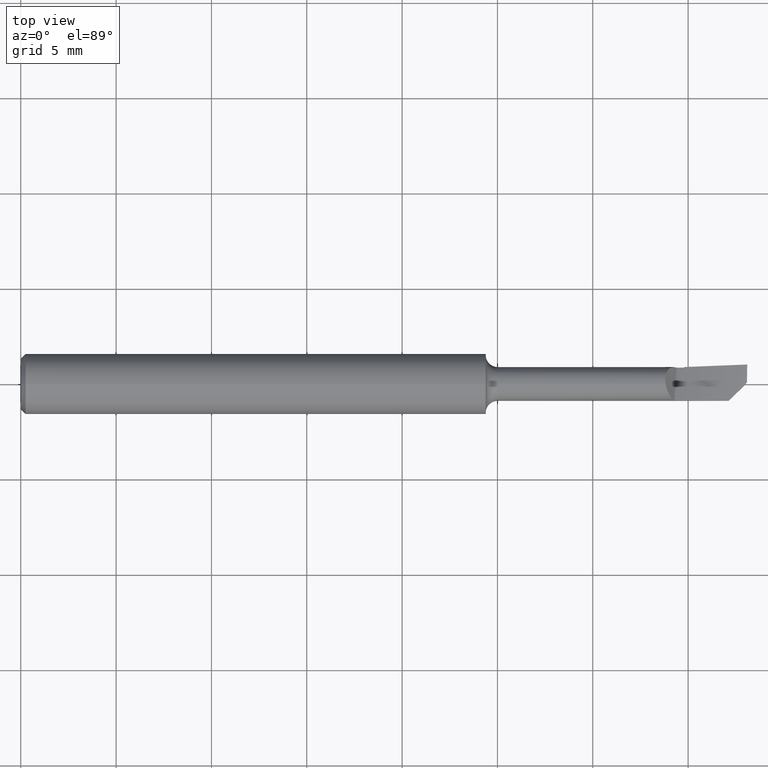
[diagram: clean part render]
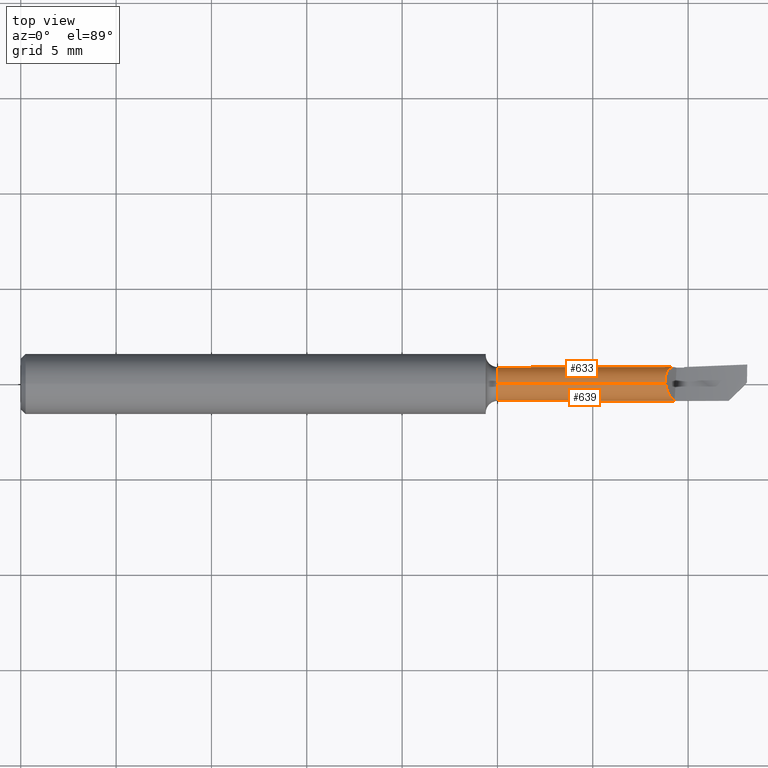
[diagram: same view with one multi-face feature highlighted, each face labeled with its STEP entity id]
A machine part, top view. The highlighted faces form ONE feature: a constant-radius fillet chain: 2 tangent blend faces with common blend radius 0.889 mm. The faces share edges in the B-rep.
Their STEP definitions:
[1] entity #633 (Cylinder):
#8 = AXIS2_PLACEMENT_3D ( 'NONE', #301, #539, #42 ) ;
#14 = CARTESIAN_POINT ( 'NONE',  ( 1.331000000000000183, 0.004616294289774065807, 0.03469423333970930723 ) ) ;
#16 = CARTESIAN_POINT ( 'NONE',  ( 1.331053929940201108, 0.003862502086807037549, 0.03479453070159699291 ) ) ;
#18 = CARTESIAN_POINT ( 'NONE',  ( 0.9850000000000004308, 0.000000000000000000, 0.03499999999999993394 ) ) ;
#39 = CARTESIAN_POINT ( 'NONE',  ( 1.354108048174081924, 0.03386716557508867576, -0.008832615462564030739 ) ) ;
#42 = DIRECTION ( 'NONE',  ( 0.000000000000000000, 0.000000000000000000, 1.000000000000000000 ) ) ;
#65 = CARTESIAN_POINT ( 'NONE',  ( 1.331394405026972372, 0.0007809970765131283698, 0.03499344398600933576 ) ) ;
#70 = CARTESIAN_POINT ( 'NONE',  ( 1.331456704639053301, 0.0003309101711865485127, 0.03500000487938483007 ) ) ;
#78 = CARTESIAN_POINT ( 'NONE',  ( 1.350060887786631136, 0.03549031136688796800, -0.002609453551673257717 ) ) ;
#84 = DIRECTION ( 'NONE',  ( 0.000000000000000000, -3.552713678800500929E-15, -1.000000000000000000 ) ) ;
#85 = CARTESIAN_POINT ( 'NONE',  ( 1.339351427473339351, 0.03167005691899973246, 0.01489993867792207931 ) ) ;
#87 = VERTEX_POINT ( 'NONE', #418 ) ;
#94 = VERTEX_POINT ( 'NONE', #174 ) ;
#133 = CARTESIAN_POINT ( 'NONE',  ( 1.354108048174081924, 0.03386716557508867576, -0.008832615462564030739 ) ) ;
#140 = CARTESIAN_POINT ( 'NONE',  ( 1.370000000000000107, 4.286263797015732127E-18, -0.03499999999999996864 ) ) ;
#146 = EDGE_CURVE ( 'NONE', #367, #750, #690, .T. ) ;
#164 = EDGE_CURVE ( 'NONE', #386, #87, #602, .T. ) ;
#166 = EDGE_LOOP ( 'NONE', ( #277, #496, #447, #462, #474, #669, #273, #630, #401 ) ) ;
#174 = CARTESIAN_POINT ( 'NONE',  ( 0.9850000000000004308, 4.286263797015730586E-18, -0.03499999999999993394 ) ) ;
#177 = CARTESIAN_POINT ( 'NONE',  ( 0.000000000000000000, 4.286263797015732127E-18, -0.03499999999999996864 ) ) ;
#185 = FACE_OUTER_BOUND ( 'NONE', #166, .T. ) ;
#191 = CARTESIAN_POINT ( 'NONE',  ( 1.335078279645394828, 0.02667914871020727122, 0.02277243315126092557 ) ) ;
#193 = B_SPLINE_CURVE_WITH_KNOTS ( 'NONE', 3,
 ( #383, #730, #722, #198, #191, #379, #605, #323, #267, #727, #430, #203, #271, #85, #673, #317, #319, #78, #133 ),
 .UNSPECIFIED., .F., .F.,
 ( 4, 2, 2, 2, 1, 1, 1, 2, 2, 2, 4 ),
 ( 0.000000000000000000, 0.2499999999999915623, 0.3749999999999874545, 0.4374999999999852895, 0.4687499999999842348, 0.4843749999999836797, 0.4921874999999834022, 0.4960937499999832356, 0.4999999999999831246, 0.7499999999999915623, 1.000000000000000000 ),
 .UNSPECIFIED. ) ;
#198 = CARTESIAN_POINT ( 'NONE',  ( 1.334244997354534501, 0.02513248369025491633, 0.02446211424800878720 ) ) ;
#200 = EDGE_CURVE ( 'NONE', #393, #324, #193, .T. ) ;
#203 = CARTESIAN_POINT ( 'NONE',  ( 1.339210398324998996, 0.03155333375350301978, 0.01514571490312990008 ) ) ;
#236 = EDGE_CURVE ( 'NONE', #324, #386, #280, .T. ) ;
#237 = CARTESIAN_POINT ( 'NONE',  ( 0.9850000000000004308, 0.000000000000000000, 0.000000000000000000 ) ) ;
#240 = CARTESIAN_POINT ( 'NONE',  ( 1.370000000000000107, 0.000000000000000000, 0.000000000000000000 ) ) ;
#241 = CARTESIAN_POINT ( 'NONE',  ( 1.331000000000000183, 0.004616294289774065807, 0.03469423333970930723 ) ) ;
#264 = CARTESIAN_POINT ( 'NONE',  ( 1.369999999999999885, 0.03408878458359804881, -0.007934403922984695212 ) ) ;
#267 = CARTESIAN_POINT ( 'NONE',  ( 1.338308066252124062, 0.03074923570111037785, 0.01673615675285359747 ) ) ;
#271 = CARTESIAN_POINT ( 'NONE',  ( 1.339287488361074363, 0.03161752867613174672, 0.01501124349615417207 ) ) ;
#273 = ORIENTED_EDGE ( 'NONE', *, *, #200, .T. ) ;
#277 = ORIENTED_EDGE ( 'NONE', *, *, #530, .T. ) ;
#279 = CARTESIAN_POINT ( 'NONE',  ( 1.369999999999999885, 0.03408878458359804881, -0.007934403922984695212 ) ) ;
#280 =( BOUNDED_CURVE ( )  B_SPLINE_CURVE ( 2, ( #39, #557, #264 ),
 .UNSPECIFIED., .F., .F. ) 
 B_SPLINE_CURVE_WITH_KNOTS ( ( 3, 3 ),
 ( 0.6897742532983571762, 0.7233326396390371560 ),
 .UNSPECIFIED. ) 
 CURVE ( )  GEOMETRIC_REPRESENTATION_ITEM ( )  RATIONAL_B_SPLINE_CURVE ( ( 0.9794810860655851492, 0.9791740060690131697, 0.9790380341072407733 ) ) 
 REPRESENTATION_ITEM ( '' )  );
#283 = CARTESIAN_POINT ( 'NONE',  ( 1.354108048174081924, 0.03386716557508867576, -0.008832615462564030739 ) ) ;
#295 = AXIS2_PLACEMENT_3D ( 'NONE', #240, #429, #84 ) ;
#299 = CARTESIAN_POINT ( 'NONE',  ( 1.331294995751446386, 0.001557939193859121186, 0.03496746922360455950 ) ) ;
#301 = CARTESIAN_POINT ( 'NONE',  ( 1.370000000000000329, 0.000000000000000000, 0.000000000000000000 ) ) ;
#316 = VECTOR ( 'NONE', #507, 39.37007874015748143 ) ;
#317 = CARTESIAN_POINT ( 'NONE',  ( 1.341894367848495806, 0.03356220163246477484, 0.01072261346815421047 ) ) ;
#319 = CARTESIAN_POINT ( 'NONE',  ( 1.346808722425171467, 0.03512389705892588615, 0.002776269691445878464 ) ) ;
#323 = CARTESIAN_POINT ( 'NONE',  ( 1.337880646310804611, 0.03031292884429805101, 0.01750633447771962267 ) ) ;
#324 = VERTEX_POINT ( 'NONE', #283 ) ;
#343 = B_SPLINE_CURVE_WITH_KNOTS ( 'NONE', 3,
 ( #370, #607, #667, #546 ),
 .UNSPECIFIED., .F., .F.,
 ( 4, 4 ),
 ( 0.000000000000000000, 1.000000000000000000 ),
 .UNSPECIFIED. ) ;
#367 = VERTEX_POINT ( 'NONE', #692 ) ;
#368 = EDGE_CURVE ( 'NONE', #367, #427, #397, .T. ) ;
#370 = CARTESIAN_POINT ( 'NONE',  ( 1.331000000000000183, 0.01240575712880445484, 0.03272762120993695512 ) ) ;
#379 = CARTESIAN_POINT ( 'NONE',  ( 1.336532539227902605, 0.02875460054899264123, 0.01998782427255080263 ) ) ;
#383 = CARTESIAN_POINT ( 'NONE',  ( 1.331000000000000183, 0.01240575712880445484, 0.03272762120993695512 ) ) ;
#386 = VERTEX_POINT ( 'NONE', #279 ) ;
#393 = VERTEX_POINT ( 'NONE', #409 ) ;
#397 = LINE ( 'NONE', #451, #316 ) ;
#401 = ORIENTED_EDGE ( 'NONE', *, *, #164, .T. ) ;
#404 = LINE ( 'NONE', #177, #422 ) ;
#409 = CARTESIAN_POINT ( 'NONE',  ( 1.331000000000000183, 0.01240575712880445484, 0.03272762120993695512 ) ) ;
#418 = CARTESIAN_POINT ( 'NONE',  ( 1.370000000000000107, 0.03319417074594387812, -0.01109716308292908217 ) ) ;
#420 = DIRECTION ( 'NONE',  ( -1.000000000000000000, -0.000000000000000000, -0.000000000000000000 ) ) ;
#422 = VECTOR ( 'NONE', #591, 39.37007874015748143 ) ;
#427 = VERTEX_POINT ( 'NONE', #18 ) ;
#429 = DIRECTION ( 'NONE',  ( -1.000000000000000000, -0.000000000000000000, -0.000000000000000000 ) ) ;
#430 = CARTESIAN_POINT ( 'NONE',  ( 1.339095162364922098, 0.03145644214380193676, 0.01534702063952567315 ) ) ;
#438 = CIRCLE ( 'NONE', #540, 0.03499999999999993394 ) ;
#447 = ORIENTED_EDGE ( 'NONE', *, *, #448, .F. ) ;
#448 = EDGE_CURVE ( 'NONE', #427, #94, #438, .T. ) ;
#451 = CARTESIAN_POINT ( 'NONE',  ( 0.000000000000000000, 0.000000000000000000, 0.03499999999999996864 ) ) ;
#462 = ORIENTED_EDGE ( 'NONE', *, *, #368, .F. ) ;
#466 = EDGE_CURVE ( 'NONE', #711, #94, #404, .T. ) ;
#472 = DIRECTION ( 'NONE',  ( 0.000000000000000000, 0.000000000000000000, 1.000000000000000000 ) ) ;
#474 = ORIENTED_EDGE ( 'NONE', *, *, #146, .T. ) ;
#477 = DIRECTION ( 'NONE',  ( -1.000000000000000000, -0.000000000000000000, -0.000000000000000000 ) ) ;
#489 = DIRECTION ( 'NONE',  ( 0.000000000000000000, 0.000000000000000000, 1.000000000000000000 ) ) ;
#496 = ORIENTED_EDGE ( 'NONE', *, *, #466, .T. ) ;
#507 = DIRECTION ( 'NONE',  ( -1.000000000000000000, -0.000000000000000000, -0.000000000000000000 ) ) ;
#509 = CARTESIAN_POINT ( 'NONE',  ( 0.000000000000000000, 0.000000000000000000, 0.000000000000000000 ) ) ;
#530 = EDGE_CURVE ( 'NONE', #87, #711, #734, .T. ) ;
#534 = CARTESIAN_POINT ( 'NONE',  ( 1.331157314241224965, 0.002718477382483935976, 0.03490923586866172268 ) ) ;
#539 = DIRECTION ( 'NONE',  ( -1.000000000000000000, -0.000000000000000000, -0.000000000000000000 ) ) ;
#540 = AXIS2_PLACEMENT_3D ( 'NONE', #237, #477, #472 ) ;
#546 = CARTESIAN_POINT ( 'NONE',  ( 1.331000000000000183, 0.004616294289774065807, 0.03469423333970930723 ) ) ;
#557 = CARTESIAN_POINT ( 'NONE',  ( 1.362050427833697563, 0.03398391115976232002, -0.008384974323531014379 ) ) ;
#568 = AXIS2_PLACEMENT_3D ( 'NONE', #509, #420, #489 ) ;
#591 = DIRECTION ( 'NONE',  ( -1.000000000000000000, -0.000000000000000000, -0.000000000000000000 ) ) ;
#592 = CARTESIAN_POINT ( 'NONE',  ( 1.331495543368545587, -1.641673629298505254E-06, 0.03501816221857528139 ) ) ;
#602 = CIRCLE ( 'NONE', #8, 0.03500000000000000333 ) ;
#605 = CARTESIAN_POINT ( 'NONE',  ( 1.337051348446442134, 0.02940566076342405674, 0.01901811565133405130 ) ) ;
#607 = CARTESIAN_POINT ( 'NONE',  ( 1.330999999999999517, 0.009803475525383244585, 0.03335994485740986781 ) ) ;
#612 = EDGE_CURVE ( 'NONE', #393, #750, #343, .T. ) ;
#630 = ORIENTED_EDGE ( 'NONE', *, *, #236, .T. ) ;
#631 = CYLINDRICAL_SURFACE ( 'NONE', #568, 0.03499999999999996864 ) ;
#633 = ADVANCED_FACE ( 'NONE', ( #185 ), #631, .T. ) ;
#667 = CARTESIAN_POINT ( 'NONE',  ( 1.330999999999999517, 0.007206722562426976127, 0.03401553553964020704 ) ) ;
#669 = ORIENTED_EDGE ( 'NONE', *, *, #612, .F. ) ;
#673 = CARTESIAN_POINT ( 'NONE',  ( 1.340232178633280258, 0.03238935991125894281, 0.01336809160094685339 ) ) ;
#690 = B_SPLINE_CURVE_WITH_KNOTS ( 'NONE', 3,
 ( #592, #70, #65, #299, #534, #16, #241 ),
 .UNSPECIFIED., .F., .F.,
 ( 4, 2, 1, 4 ),
 ( 0.9157605615777310026, 0.9368204211832978912, 0.9578802807888646687, 1.000000000000000000 ),
 .UNSPECIFIED. ) ;
#692 = CARTESIAN_POINT ( 'NONE',  ( 1.331495543368545587, -1.641673629298505254E-06, 0.03501816221857528139 ) ) ;
#711 = VERTEX_POINT ( 'NONE', #140 ) ;
#722 = CARTESIAN_POINT ( 'NONE',  ( 1.332153822774389651, 0.02013732479313393858, 0.02897645992646607702 ) ) ;
#727 = CARTESIAN_POINT ( 'NONE',  ( 1.338829072116323182, 0.03122619352372724144, 0.01581390174671621143 ) ) ;
#730 = CARTESIAN_POINT ( 'NONE',  ( 1.331304602777540147, 0.01633715496285515628, 0.03123738513575795642 ) ) ;
#734 = CIRCLE ( 'NONE', #295, 0.03499999999999996864 ) ;
#750 = VERTEX_POINT ( 'NONE', #14 ) ;
[2] entity #639 (Cylinder):
#18 = CARTESIAN_POINT ( 'NONE',  ( 0.9850000000000004308, 0.000000000000000000, 0.03499999999999993394 ) ) ;
#21 =( BOUNDED_CURVE ( )  B_SPLINE_CURVE ( 2, ( #159, #433, #676 ),
 .UNSPECIFIED., .F., .F. ) 
 B_SPLINE_CURVE_WITH_KNOTS ( ( 3, 3 ),
 ( 0.08301568989664878662, 0.3192027755319414850 ),
 .UNSPECIFIED. ) 
 CURVE ( )  GEOMETRIC_REPRESENTATION_ITEM ( )  RATIONAL_B_SPLINE_CURVE ( ( 0.9831666040570180565, 0.9771742139515711134, 0.9796576210879086588 ) ) 
 REPRESENTATION_ITEM ( '' )  );
#26 = CARTESIAN_POINT ( 'NONE',  ( 1.370000000000000107, -0.002475945125171957664, -0.03491231438528725334 ) ) ;
#38 = ORIENTED_EDGE ( 'NONE', *, *, #368, .T. ) ;
#53 = ORIENTED_EDGE ( 'NONE', *, *, #466, .F. ) ;
#66 = EDGE_CURVE ( 'NONE', #741, #148, #75, .T. ) ;
#71 =( BOUNDED_CURVE ( )  B_SPLINE_CURVE ( 3, ( #446, #276, #96, #161 ),
 .UNSPECIFIED., .F., .F. ) 
 B_SPLINE_CURVE_WITH_KNOTS ( ( 4, 4 ),
 ( 0.04083710381015163288, 0.07095262296442973737 ),
 .UNSPECIFIED. ) 
 CURVE ( )  GEOMETRIC_REPRESENTATION_ITEM ( )  RATIONAL_B_SPLINE_CURVE ( ( 1.000000000000000000, 0.9999244227201967705, 0.9999244227201967705, 1.000000000000000000 ) ) 
 REPRESENTATION_ITEM ( '' )  );
#75 = LINE ( 'NONE', #526, #714 ) ;
#77 = DIRECTION ( 'NONE',  ( 0.000000000000000000, 0.000000000000000000, 1.000000000000000000 ) ) ;
#79 = CARTESIAN_POINT ( 'NONE',  ( 1.347349021243149148, -0.03284882170808211405, 0.01302152709131887236 ) ) ;
#82 = VERTEX_POINT ( 'NONE', #482 ) ;
#83 = CARTESIAN_POINT ( 'NONE',  ( 1.332032781342379346, -0.003603421095435877831, 0.03499994691147841758 ) ) ;
#94 = VERTEX_POINT ( 'NONE', #174 ) ;
#96 = CARTESIAN_POINT ( 'NONE',  ( 1.495348054018489803, -0.0003513610013223372719, -0.03499999999999997558 ) ) ;
#106 = ORIENTED_EDGE ( 'NONE', *, *, #66, .T. ) ;
#108 = CARTESIAN_POINT ( 'NONE',  ( 1.370000000000000107, 0.000000000000000000, 0.000000000000000000 ) ) ;
#129 = ORIENTED_EDGE ( 'NONE', *, *, #725, .T. ) ;
#136 = CARTESIAN_POINT ( 'NONE',  ( 1.349861253357378610, -0.03400066440094470094, 0.008303903918900398112 ) ) ;
#137 = CARTESIAN_POINT ( 'NONE',  ( 0.000000000000000000, 0.000000000000000000, 0.000000000000000000 ) ) ;
#140 = CARTESIAN_POINT ( 'NONE',  ( 1.370000000000000107, 4.286263797015732127E-18, -0.03499999999999996864 ) ) ;
#148 = VERTEX_POINT ( 'NONE', #357 ) ;
#159 = CARTESIAN_POINT ( 'NONE',  ( 1.461448099694315106, -0.03494965605692109539, 0.001876577070870324082 ) ) ;
#161 = CARTESIAN_POINT ( 'NONE',  ( 1.495351120299495129, 0.000000000000000000, -0.03499999999999996864 ) ) ;
#174 = CARTESIAN_POINT ( 'NONE',  ( 0.9850000000000004308, 4.286263797015730586E-18, -0.03499999999999993394 ) ) ;
#177 = CARTESIAN_POINT ( 'NONE',  ( 0.000000000000000000, 4.286263797015732127E-18, -0.03499999999999996864 ) ) ;
#179 = CARTESIAN_POINT ( 'NONE',  ( 1.461448099694315106, -0.03494965605692109539, 0.001876577070870324082 ) ) ;
#181 = CARTESIAN_POINT ( 'NONE',  ( 1.339803441005056550, -0.02395614404560263144, 0.02567755221092459308 ) ) ;
#182 = CARTESIAN_POINT ( 'NONE',  ( 1.474466291480983404, -0.02193146427025282827, -0.03435520035170590292 ) ) ;
#183 = VERTEX_POINT ( 'NONE', #664 ) ;
#190 = AXIS2_PLACEMENT_3D ( 'NONE', #717, #305, #533 ) ;
#207 = CIRCLE ( 'NONE', #190, 0.03499999999999993394 ) ;
#229 =( BOUNDED_CURVE ( )  B_SPLINE_CURVE ( 3, ( #179, #461, #182, #657 ),
 .UNSPECIFIED., .F., .T. ) 
 B_SPLINE_CURVE_WITH_KNOTS ( ( 4, 4 ),
 ( 6.229543097350791925, 7.823866114820203777 ),
 .UNSPECIFIED. ) 
 CURVE ( )  GEOMETRIC_REPRESENTATION_ITEM ( )  RATIONAL_B_SPLINE_CURVE ( ( 1.000000000000000000, 0.7991600726123448961, 0.7991600726123448961, 1.000000000000000000 ) ) 
 REPRESENTATION_ITEM ( '' )  );
#245 = CARTESIAN_POINT ( 'NONE',  ( 1.337793386717790689, -0.02021934037416783445, 0.02857017395102818755 ) ) ;
#249 = CARTESIAN_POINT ( 'NONE',  ( 1.336700319362786438, -0.01793408803862646742, 0.03007517464143421443 ) ) ;
#253 = CARTESIAN_POINT ( 'NONE',  ( 1.378017820884383626, -0.001657874042096282993, -0.03497033113799610793 ) ) ;
#276 = CARTESIAN_POINT ( 'NONE',  ( 1.495345637702724106, -0.0007026821702816105812, -0.03499470949044750784 ) ) ;
#281 = ORIENTED_EDGE ( 'NONE', *, *, #647, .T. ) ;
#305 = DIRECTION ( 'NONE',  ( -1.000000000000000000, -0.000000000000000000, -0.000000000000000000 ) ) ;
#306 = ORIENTED_EDGE ( 'NONE', *, *, #584, .T. ) ;
#308 = ORIENTED_EDGE ( 'NONE', *, *, #497, .F. ) ;
#311 = EDGE_CURVE ( 'NONE', #711, #491, #475, .T. ) ;
#316 = VECTOR ( 'NONE', #507, 39.37007874015748143 ) ;
#355 = CARTESIAN_POINT ( 'NONE',  ( 1.334785909115937530, -0.01320658456568437993, 0.03247618194674371100 ) ) ;
#357 = CARTESIAN_POINT ( 'NONE',  ( 1.495351120299495129, 0.000000000000000000, -0.03499999999999996864 ) ) ;
#358 = EDGE_CURVE ( 'NONE', #82, #148, #71, .T. ) ;
#359 = CARTESIAN_POINT ( 'NONE',  ( 1.331495543368545587, -1.641673629298505254E-06, 0.03501816221857528139 ) ) ;
#367 = VERTEX_POINT ( 'NONE', #692 ) ;
#368 = EDGE_CURVE ( 'NONE', #367, #427, #397, .T. ) ;
#373 = CARTESIAN_POINT ( 'NONE',  ( 1.338270308099900774, -0.02114505770134942481, 0.02789272803984611457 ) ) ;
#374 = CARTESIAN_POINT ( 'NONE',  ( 1.394051705318784640, 1.333910153156378525E-19, -0.03499999999999997558 ) ) ;
#397 = LINE ( 'NONE', #451, #316 ) ;
#404 = LINE ( 'NONE', #177, #422 ) ;
#405 = ORIENTED_EDGE ( 'NONE', *, *, #358, .F. ) ;
#416 = CARTESIAN_POINT ( 'NONE',  ( 1.394051705318784640, 1.333910153156378525E-19, -0.03499999999999997558 ) ) ;
#419 = CARTESIAN_POINT ( 'NONE',  ( 1.337229345020754634, -0.01909039094786255109, 0.02936240406959208030 ) ) ;
#422 = VECTOR ( 'NONE', #591, 39.37007874015748143 ) ;
#427 = VERTEX_POINT ( 'NONE', #18 ) ;
#433 = CARTESIAN_POINT ( 'NONE',  ( 1.405854669175920391, -0.03477472758508969725, 0.005134471468053118659 ) ) ;
#446 = CARTESIAN_POINT ( 'NONE',  ( 1.495343871900053356, -0.001053883851182963556, -0.03498412967086950848 ) ) ;
#451 = CARTESIAN_POINT ( 'NONE',  ( 0.000000000000000000, 0.000000000000000000, 0.03499999999999996864 ) ) ;
#459 = B_SPLINE_CURVE_WITH_KNOTS ( 'NONE', 3,
 ( #26, #253, #484, #374 ),
 .UNSPECIFIED., .F., .F.,
 ( 4, 4 ),
 ( 0.000000000000000000, 0.0006141458020259701282 ),
 .UNSPECIFIED. ) ;
#461 = CARTESIAN_POINT ( 'NONE',  ( 1.460328209358946472, -0.03606954639228938941, -0.01898043042972716657 ) ) ;
#466 = EDGE_CURVE ( 'NONE', #711, #94, #404, .T. ) ;
#475 = CIRCLE ( 'NONE', #514, 0.03499999999999996864 ) ;
#479 = CARTESIAN_POINT ( 'NONE',  ( 1.338054939739406146, -0.02073186248784556623, 0.02819963321498373046 ) ) ;
#481 = EDGE_CURVE ( 'NONE', #94, #427, #207, .T. ) ;
#482 = CARTESIAN_POINT ( 'NONE',  ( 1.495343871900053356, -0.001053883851182963556, -0.03498412967086950848 ) ) ;
#484 = CARTESIAN_POINT ( 'NONE',  ( 1.386035131008513943, -0.0008322225078209507382, -0.03500000000000061395 ) ) ;
#491 = VERTEX_POINT ( 'NONE', #707 ) ;
#497 = EDGE_CURVE ( 'NONE', #183, #82, #229, .T. ) ;
#502 = B_SPLINE_CURVE_WITH_KNOTS ( 'NONE', 3,
 ( #136, #79, #720, #549, #181, #543, #373, #479, #656, #245, #419, #249, #610, #355, #536, #83, #359 ),
 .UNSPECIFIED., .F., .F.,
 ( 4, 2, 2, 2, 2, 1, 2, 2, 4 ),
 ( 0.000000000000000000, 0.2289401403944834879, 0.4578802807889670867, 0.4864977983382736126, 0.5008065571129226567, 0.5151153158875716453, 0.5723503509861679328, 0.6868204211833556228, 0.9157605615777310026 ),
 .UNSPECIFIED. ) ;
#504 = AXIS2_PLACEMENT_3D ( 'NONE', #137, #742, #77 ) ;
#507 = DIRECTION ( 'NONE',  ( -1.000000000000000000, -0.000000000000000000, -0.000000000000000000 ) ) ;
#508 = ORIENTED_EDGE ( 'NONE', *, *, #481, .F. ) ;
#514 = AXIS2_PLACEMENT_3D ( 'NONE', #108, #740, #743 ) ;
#519 = EDGE_LOOP ( 'NONE', ( #53, #685, #281, #106, #405, #308, #306, #129, #38, #508 ) ) ;
#526 = CARTESIAN_POINT ( 'NONE',  ( 1.370000000000000107, 0.000000000000000000, -0.03499999999999996864 ) ) ;
#533 = DIRECTION ( 'NONE',  ( 0.000000000000000000, 0.000000000000000000, 1.000000000000000000 ) ) ;
#536 = CARTESIAN_POINT ( 'NONE',  ( 1.332918893907774960, -0.007445133118550570014, 0.03443885990797850016 ) ) ;
#543 = CARTESIAN_POINT ( 'NONE',  ( 1.338419010366644235, -0.02142375399341478470, 0.02767944026997281107 ) ) ;
#549 = CARTESIAN_POINT ( 'NONE',  ( 1.341361941040779104, -0.02639753248977104103, 0.02330451730960648657 ) ) ;
#570 = VERTEX_POINT ( 'NONE', #729 ) ;
#584 = EDGE_CURVE ( 'NONE', #183, #570, #21, .T. ) ;
#591 = DIRECTION ( 'NONE',  ( -1.000000000000000000, -0.000000000000000000, -0.000000000000000000 ) ) ;
#610 = CARTESIAN_POINT ( 'NONE',  ( 1.335497888578669912, -0.01512468925292026131, 0.03163596606652775700 ) ) ;
#639 = ADVANCED_FACE ( 'NONE', ( #726 ), #663, .T. ) ;
#647 = EDGE_CURVE ( 'NONE', #491, #741, #459, .T. ) ;
#656 = CARTESIAN_POINT ( 'NONE',  ( 1.338021804679730309, -0.02066852558397470896, 0.02824692222071363903 ) ) ;
#657 = CARTESIAN_POINT ( 'NONE',  ( 1.495343871900053356, -0.001053883851182963556, -0.03498412967086950848 ) ) ;
#663 = CYLINDRICAL_SURFACE ( 'NONE', #504, 0.03499999999999996864 ) ;
#664 = CARTESIAN_POINT ( 'NONE',  ( 1.461448099694315106, -0.03494965605692109539, 0.001876577070870324082 ) ) ;
#676 = CARTESIAN_POINT ( 'NONE',  ( 1.349861253357378610, -0.03400066440094470094, 0.008303903918900399847 ) ) ;
#685 = ORIENTED_EDGE ( 'NONE', *, *, #311, .T. ) ;
#692 = CARTESIAN_POINT ( 'NONE',  ( 1.331495543368545587, -1.641673629298505254E-06, 0.03501816221857528139 ) ) ;
#707 = CARTESIAN_POINT ( 'NONE',  ( 1.370000000000000107, -0.002475945125171957664, -0.03491231438528725334 ) ) ;
#708 = DIRECTION ( 'NONE',  ( 1.000000000000000000, -0.000000000000000000, -0.000000000000000000 ) ) ;
#711 = VERTEX_POINT ( 'NONE', #140 ) ;
#714 = VECTOR ( 'NONE', #708, 39.37007874015748143 ) ;
#717 = CARTESIAN_POINT ( 'NONE',  ( 0.9850000000000004308, 0.000000000000000000, 0.000000000000000000 ) ) ;
#720 = CARTESIAN_POINT ( 'NONE',  ( 1.345134731159825625, -0.03084545218212087977, 0.01698494416425211373 ) ) ;
#725 = EDGE_CURVE ( 'NONE', #570, #367, #502, .T. ) ;
#726 = FACE_OUTER_BOUND ( 'NONE', #519, .T. ) ;
#729 = CARTESIAN_POINT ( 'NONE',  ( 1.349861253357378610, -0.03400066440094470094, 0.008303903918900398112 ) ) ;
#740 = DIRECTION ( 'NONE',  ( -1.000000000000000000, -0.000000000000000000, -0.000000000000000000 ) ) ;
#741 = VERTEX_POINT ( 'NONE', #416 ) ;
#742 = DIRECTION ( 'NONE',  ( -1.000000000000000000, -0.000000000000000000, -0.000000000000000000 ) ) ;
#743 = DIRECTION ( 'NONE',  ( 0.000000000000000000, 0.000000000000000000, -1.000000000000000000 ) ) ;